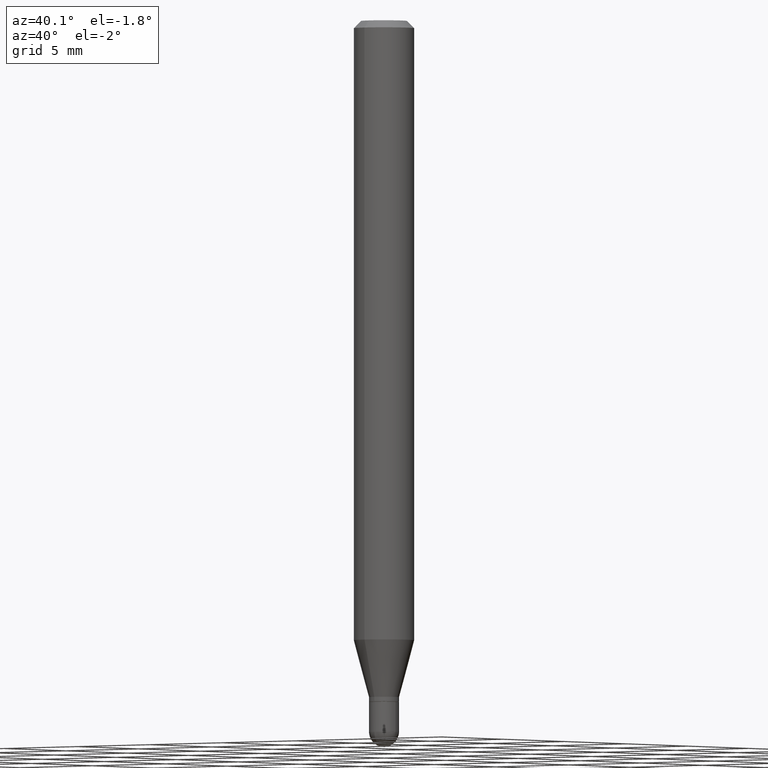
[diagram: clean part render]
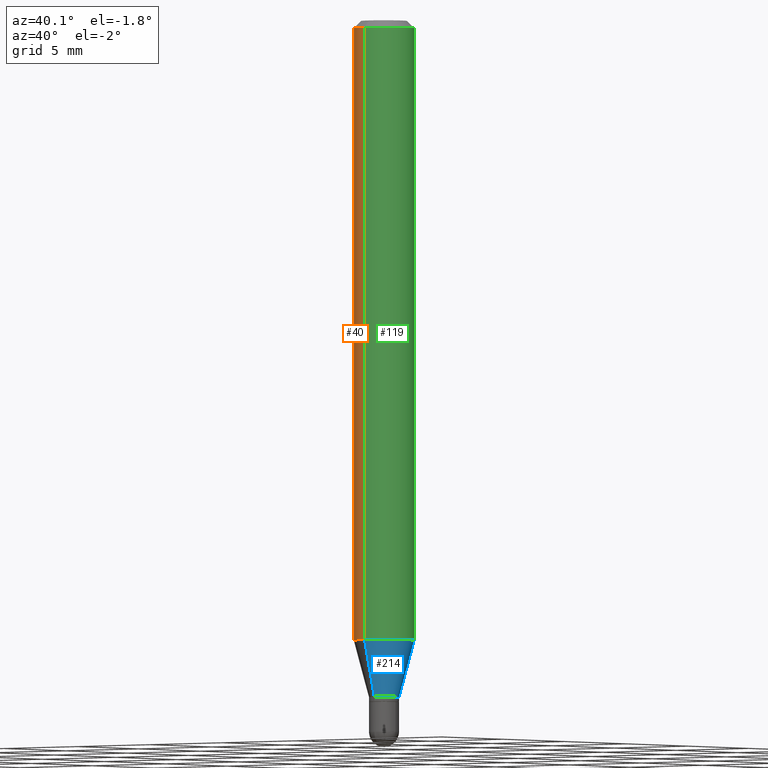
[diagram: same view with three faces highlighted in distinct colors, each labeled with its STEP entity id]
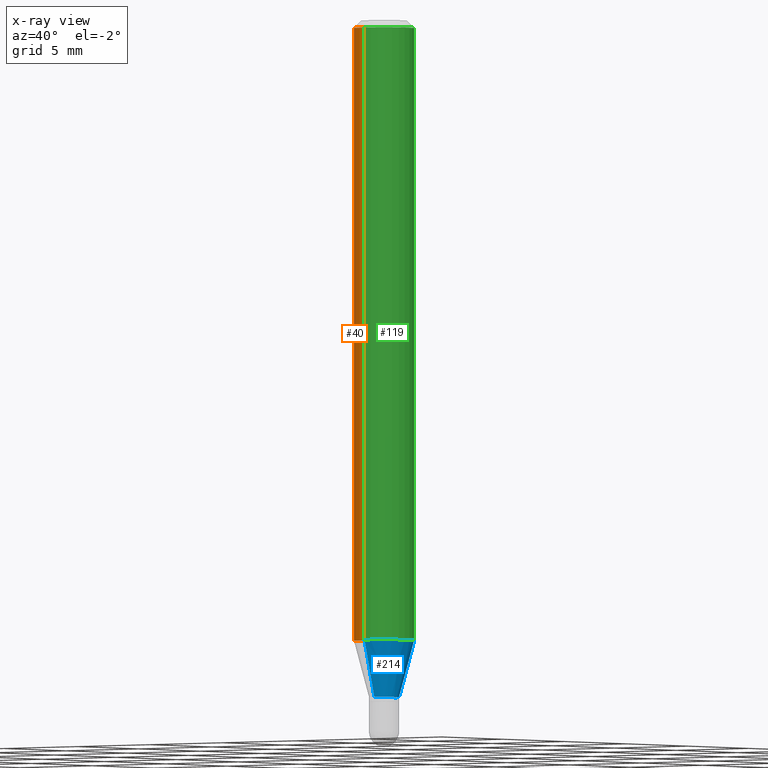
[diagram: x-ray of the same camera — body ghosted, the three highlighted faces saturated]
A machine part, auxiliary view with three faces highlighted in distinct colors.
The next image is the same camera in x-ray (body ghosted, the three faces saturated) — at least one of them is partly hidden behind the body in this view.
Their STEP definitions:

[orange] entity #40 — the highlighted cylindrical surface (edge-blend (fillet) strip) has radius 1.5875 mm, axis along (-0, 0, 1).
#13 = CARTESIAN_POINT ( 'NONE',  ( -4.364351673553605094E-16, -0.06250000000000448253, -1.279440399561580399 ) ) ;
#19 = EDGE_CURVE ( 'NONE', #32, #107, #314, .T. ) ;
#28 = FACE_OUTER_BOUND ( 'NONE', #61, .T. ) ;
#32 = VERTEX_POINT ( 'NONE', #267 ) ;
#40 = ADVANCED_FACE ( 'NONE', ( #28 ), #308, .T. ) ;
#47 = DIRECTION ( 'NONE',  ( -2.445496042314745397E-29, 3.491442335155361584E-15, 1.000000000000000000 ) ) ;
#54 = CARTESIAN_POINT ( 'NONE',  ( 4.440892098500940720E-16, 0.06249999999999995143, -0.01500000000000022669 ) ) ;
#60 = CIRCLE ( 'NONE', #201, 0.06250000000000000000 ) ;
#61 = EDGE_LOOP ( 'NONE', ( #436, #187, #226, #392 ) ) ;
#62 = DIRECTION ( 'NONE',  ( -2.445496042314745397E-29, 3.491442335155361584E-15, 1.000000000000000000 ) ) ;
#70 = DIRECTION ( 'NONE',  ( -6.982962677686265922E-15, -1.000000000000000000, 3.491442335155361190E-15 ) ) ;
#88 = CARTESIAN_POINT ( 'NONE',  ( 3.668244063472120582E-31, -5.237163502733045828E-17, -0.01500000000000000812 ) ) ;
#94 = CARTESIAN_POINT ( 'NONE',  ( -4.364351673553916201E-16, -0.06250000000000000000, 2.182151459472100744E-16 ) ) ;
#98 = AXIS2_PLACEMENT_3D ( 'NONE', #430, #346, #422 ) ;
#107 = VERTEX_POINT ( 'NONE', #13 ) ;
#125 = CARTESIAN_POINT ( 'NONE',  ( -4.364351673553912750E-16, -0.06250000000000005551, -0.01499999999999979128 ) ) ;
#135 = VERTEX_POINT ( 'NONE', #125 ) ;
#136 = EDGE_CURVE ( 'NONE', #32, #238, #262, .T. ) ;
#141 = LINE ( 'NONE', #94, #335 ) ;
#161 = DIRECTION ( 'NONE',  ( -2.445496042314745397E-29, 3.491442335155361584E-15, 1.000000000000000000 ) ) ;
#187 = ORIENTED_EDGE ( 'NONE', *, *, #19, .T. ) ;
#201 = AXIS2_PLACEMENT_3D ( 'NONE', #88, #258, #406 ) ;
#226 = ORIENTED_EDGE ( 'NONE', *, *, #339, .T. ) ;
#238 = VERTEX_POINT ( 'NONE', #54 ) ;
#258 = DIRECTION ( 'NONE',  ( -2.445496042314745397E-29, 3.491442335155361584E-15, 1.000000000000000000 ) ) ;
#262 = LINE ( 'NONE', #298, #295 ) ;
#267 = CARTESIAN_POINT ( 'NONE',  ( 4.440892098500935790E-16, 0.06249999999999551054, -1.279440399561581065 ) ) ;
#285 = EDGE_CURVE ( 'NONE', #238, #135, #60, .T. ) ;
#295 = VECTOR ( 'NONE', #47, 39.37007874015748143 ) ;
#298 = CARTESIAN_POINT ( 'NONE',  ( 4.440892098500625669E-16, 0.06250000000000000000, -2.182151459472100744E-16 ) ) ;
#308 = CYLINDRICAL_SURFACE ( 'NONE', #363, 0.06250000000000000000 ) ;
#314 = CIRCLE ( 'NONE', #98, 0.06250000000000000000 ) ;
#335 = VECTOR ( 'NONE', #161, 39.37007874015748143 ) ;
#339 = EDGE_CURVE ( 'NONE', #107, #135, #141, .T. ) ;
#346 = DIRECTION ( 'NONE',  ( -2.445496042314745397E-29, 3.491442335155361584E-15, 1.000000000000000000 ) ) ;
#363 = AXIS2_PLACEMENT_3D ( 'NONE', #469, #62, #70 ) ;
#392 = ORIENTED_EDGE ( 'NONE', *, *, #285, .F. ) ;
#406 = DIRECTION ( 'NONE',  ( -6.982962677686265922E-15, -1.000000000000000000, 3.483106191921935554E-15 ) ) ;
#422 = DIRECTION ( 'NONE',  ( -6.982962677686265922E-15, -1.000000000000000000, 4.370956789862821150E-15 ) ) ;
#430 = CARTESIAN_POINT ( 'NONE',  ( 3.128866433505442183E-29, -4.467092376337393901E-15, -1.279440399561580843 ) ) ;
#436 = ORIENTED_EDGE ( 'NONE', *, *, #136, .F. ) ;
#469 = CARTESIAN_POINT ( 'NONE',  ( 0.000000000000000000, 0.000000000000000000, 0.000000000000000000 ) ) ;

[blue] entity #214 — the highlighted conical surface has half-angle 15 deg.
#13 = CARTESIAN_POINT ( 'NONE',  ( -4.364351673553605094E-16, -0.06250000000000448253, -1.279440399561580399 ) ) ;
#32 = VERTEX_POINT ( 'NONE', #267 ) ;
#36 = EDGE_CURVE ( 'NONE', #382, #107, #152, .T. ) ;
#48 = CIRCLE ( 'NONE', #130, 0.03099999999999991651 ) ;
#50 = EDGE_CURVE ( 'NONE', #107, #32, #284, .T. ) ;
#59 = AXIS2_PLACEMENT_3D ( 'NONE', #461, #276, #73 ) ;
#68 = DIRECTION ( 'NONE',  ( -1.807323732225332900E-15, -0.2588190451025185190, 0.9659258262890689783 ) ) ;
#73 = DIRECTION ( 'NONE',  ( -6.982962677686265922E-15, -1.000000000000000000, 4.370956789862821150E-15 ) ) ;
#83 = CONICAL_SURFACE ( 'NONE', #274, 0.03099999999999991651, 0.2617993877991506291 ) ;
#97 = DIRECTION ( 'NONE',  ( -2.445496042314745397E-29, 3.491442335155361584E-15, 1.000000000000000000 ) ) ;
#105 = CARTESIAN_POINT ( 'NONE',  ( 3.321787289678792287E-16, 0.03099999999999503500, -1.397000000000000242 ) ) ;
#107 = VERTEX_POINT ( 'NONE', #13 ) ;
#128 = DIRECTION ( 'NONE',  ( 1.839019923739602682E-15, 0.2588190451025252914, 0.9659258262890670910 ) ) ;
#130 = AXIS2_PLACEMENT_3D ( 'NONE', #300, #97, #492 ) ;
#139 = ORIENTED_EDGE ( 'NONE', *, *, #36, .F. ) ;
#147 = CARTESIAN_POINT ( 'NONE',  ( -2.164718430082395226E-16, -0.03100000000000479802, -1.397000000000000242 ) ) ;
#152 = LINE ( 'NONE', #157, #466 ) ;
#157 = CARTESIAN_POINT ( 'NONE',  ( -2.164718430082395226E-16, -0.03100000000000479802, -1.397000000000000242 ) ) ;
#166 = DIRECTION ( 'NONE',  ( -6.982962677686266711E-15, -1.000000000000000000, 0.000000000000000000 ) ) ;
#173 = EDGE_CURVE ( 'NONE', #382, #390, #48, .T. ) ;
#214 = ADVANCED_FACE ( 'NONE', ( #288 ), #83, .T. ) ;
#267 = CARTESIAN_POINT ( 'NONE',  ( 4.440892098500935790E-16, 0.06249999999999551054, -1.279440399561581065 ) ) ;
#269 = ORIENTED_EDGE ( 'NONE', *, *, #293, .T. ) ;
#274 = AXIS2_PLACEMENT_3D ( 'NONE', #441, #401, #166 ) ;
#276 = DIRECTION ( 'NONE',  ( -2.445496042314745397E-29, 3.491442335155361584E-15, 1.000000000000000000 ) ) ;
#284 = CIRCLE ( 'NONE', #59, 0.06250000000000000000 ) ;
#288 = FACE_OUTER_BOUND ( 'NONE', #423, .T. ) ;
#293 = EDGE_CURVE ( 'NONE', #390, #32, #330, .T. ) ;
#300 = CARTESIAN_POINT ( 'NONE',  ( 3.416357971113700377E-29, -4.877544942212040003E-15, -1.397000000000000242 ) ) ;
#322 = VECTOR ( 'NONE', #128, 39.37007874015748143 ) ;
#330 = LINE ( 'NONE', #484, #322 ) ;
#382 = VERTEX_POINT ( 'NONE', #147 ) ;
#390 = VERTEX_POINT ( 'NONE', #105 ) ;
#401 = DIRECTION ( 'NONE',  ( -2.445496042314745397E-29, 3.491442335155361584E-15, 1.000000000000000000 ) ) ;
#414 = ORIENTED_EDGE ( 'NONE', *, *, #50, .F. ) ;
#423 = EDGE_LOOP ( 'NONE', ( #505, #269, #414, #139 ) ) ;
#441 = CARTESIAN_POINT ( 'NONE',  ( 3.416357971113700377E-29, -4.877544942212040003E-15, -1.397000000000000242 ) ) ;
#461 = CARTESIAN_POINT ( 'NONE',  ( 3.128866433505442183E-29, -4.467092376337393901E-15, -1.279440399561580843 ) ) ;
#466 = VECTOR ( 'NONE', #68, 39.37007874015748854 ) ;
#484 = CARTESIAN_POINT ( 'NONE',  ( 2.202682480856645826E-16, 0.03099999999999503847, -1.397000000000000242 ) ) ;
#492 = DIRECTION ( 'NONE',  ( -6.982962677686266711E-15, -1.000000000000000000, 0.000000000000000000 ) ) ;
#505 = ORIENTED_EDGE ( 'NONE', *, *, #173, .T. ) ;

[green] entity #119 — the highlighted cylindrical surface (edge-blend (fillet) strip) has radius 1.5875 mm, axis along (-0, 0, 1).
#13 = CARTESIAN_POINT ( 'NONE',  ( -4.364351673553605094E-16, -0.06250000000000448253, -1.279440399561580399 ) ) ;
#32 = VERTEX_POINT ( 'NONE', #267 ) ;
#47 = DIRECTION ( 'NONE',  ( -2.445496042314745397E-29, 3.491442335155361584E-15, 1.000000000000000000 ) ) ;
#50 = EDGE_CURVE ( 'NONE', #107, #32, #284, .T. ) ;
#52 = CARTESIAN_POINT ( 'NONE',  ( 0.000000000000000000, 0.000000000000000000, 0.000000000000000000 ) ) ;
#54 = CARTESIAN_POINT ( 'NONE',  ( 4.440892098500940720E-16, 0.06249999999999995143, -0.01500000000000022669 ) ) ;
#59 = AXIS2_PLACEMENT_3D ( 'NONE', #461, #276, #73 ) ;
#73 = DIRECTION ( 'NONE',  ( -6.982962677686265922E-15, -1.000000000000000000, 4.370956789862821150E-15 ) ) ;
#89 = DIRECTION ( 'NONE',  ( -2.445496042314745397E-29, 3.491442335155361584E-15, 1.000000000000000000 ) ) ;
#94 = CARTESIAN_POINT ( 'NONE',  ( -4.364351673553916201E-16, -0.06250000000000000000, 2.182151459472100744E-16 ) ) ;
#107 = VERTEX_POINT ( 'NONE', #13 ) ;
#119 = ADVANCED_FACE ( 'NONE', ( #183 ), #331, .T. ) ;
#125 = CARTESIAN_POINT ( 'NONE',  ( -4.364351673553912750E-16, -0.06250000000000005551, -0.01499999999999979128 ) ) ;
#135 = VERTEX_POINT ( 'NONE', #125 ) ;
#136 = EDGE_CURVE ( 'NONE', #32, #238, #262, .T. ) ;
#141 = LINE ( 'NONE', #94, #335 ) ;
#161 = DIRECTION ( 'NONE',  ( -2.445496042314745397E-29, 3.491442335155361584E-15, 1.000000000000000000 ) ) ;
#183 = FACE_OUTER_BOUND ( 'NONE', #323, .T. ) ;
#195 = ORIENTED_EDGE ( 'NONE', *, *, #477, .F. ) ;
#238 = VERTEX_POINT ( 'NONE', #54 ) ;
#259 = DIRECTION ( 'NONE',  ( -6.982962677686265922E-15, -1.000000000000000000, 3.483106191921935554E-15 ) ) ;
#262 = LINE ( 'NONE', #298, #295 ) ;
#267 = CARTESIAN_POINT ( 'NONE',  ( 4.440892098500935790E-16, 0.06249999999999551054, -1.279440399561581065 ) ) ;
#272 = ORIENTED_EDGE ( 'NONE', *, *, #136, .T. ) ;
#276 = DIRECTION ( 'NONE',  ( -2.445496042314745397E-29, 3.491442335155361584E-15, 1.000000000000000000 ) ) ;
#280 = AXIS2_PLACEMENT_3D ( 'NONE', #52, #89, #405 ) ;
#284 = CIRCLE ( 'NONE', #59, 0.06250000000000000000 ) ;
#287 = AXIS2_PLACEMENT_3D ( 'NONE', #338, #491, #259 ) ;
#295 = VECTOR ( 'NONE', #47, 39.37007874015748143 ) ;
#296 = CIRCLE ( 'NONE', #287, 0.06250000000000000000 ) ;
#298 = CARTESIAN_POINT ( 'NONE',  ( 4.440892098500625669E-16, 0.06250000000000000000, -2.182151459472100744E-16 ) ) ;
#323 = EDGE_LOOP ( 'NONE', ( #361, #272, #195, #396 ) ) ;
#331 = CYLINDRICAL_SURFACE ( 'NONE', #280, 0.06250000000000000000 ) ;
#335 = VECTOR ( 'NONE', #161, 39.37007874015748143 ) ;
#338 = CARTESIAN_POINT ( 'NONE',  ( 3.668244063472120582E-31, -5.237163502733045828E-17, -0.01500000000000000812 ) ) ;
#339 = EDGE_CURVE ( 'NONE', #107, #135, #141, .T. ) ;
#361 = ORIENTED_EDGE ( 'NONE', *, *, #50, .T. ) ;
#396 = ORIENTED_EDGE ( 'NONE', *, *, #339, .F. ) ;
#405 = DIRECTION ( 'NONE',  ( -6.982962677686265922E-15, -1.000000000000000000, 3.491442335155361190E-15 ) ) ;
#461 = CARTESIAN_POINT ( 'NONE',  ( 3.128866433505442183E-29, -4.467092376337393901E-15, -1.279440399561580843 ) ) ;
#477 = EDGE_CURVE ( 'NONE', #135, #238, #296, .T. ) ;
#491 = DIRECTION ( 'NONE',  ( -2.445496042314745397E-29, 3.491442335155361584E-15, 1.000000000000000000 ) ) ;